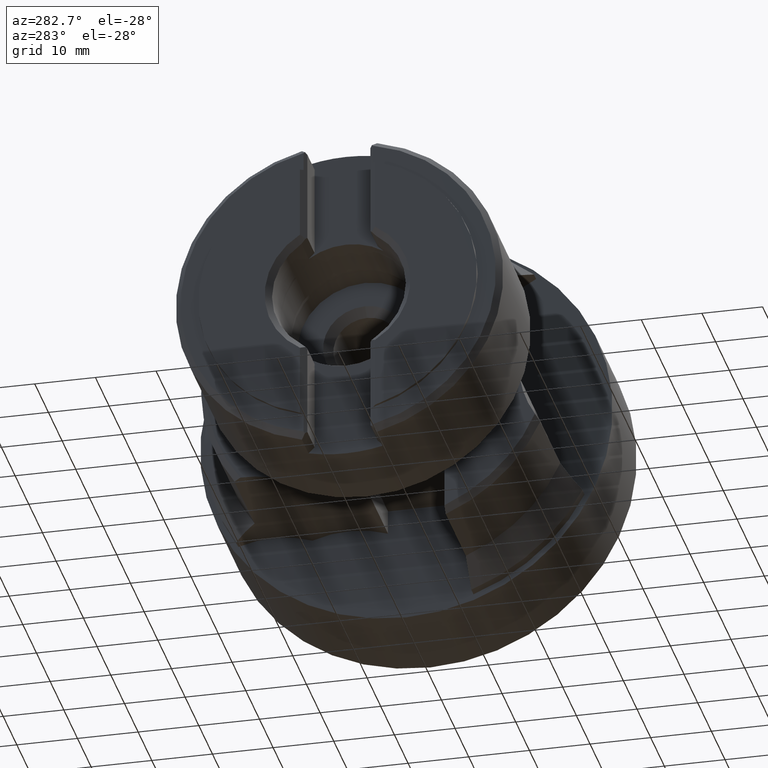
[diagram: clean part render]
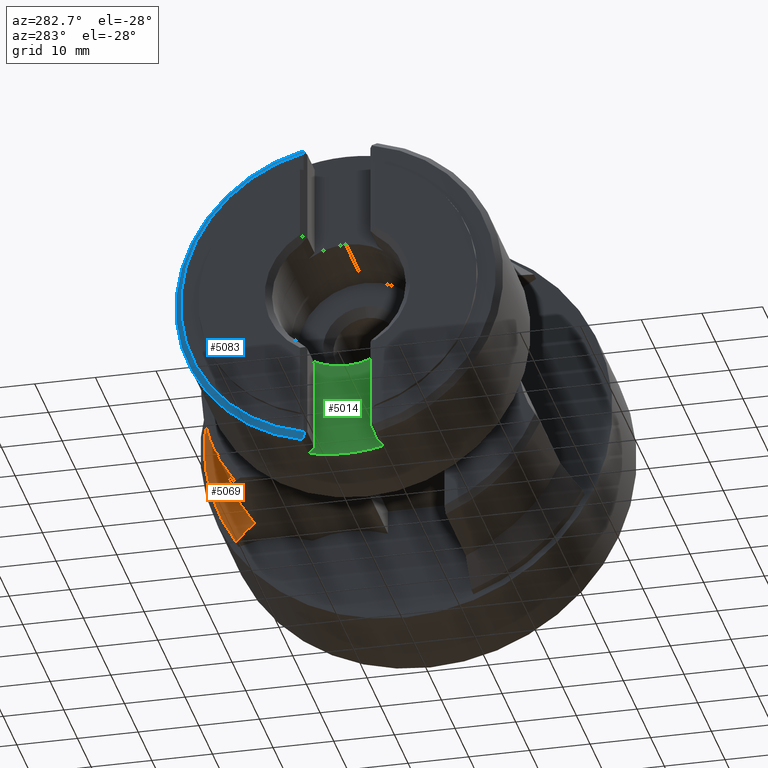
[diagram: same view with three faces highlighted in distinct colors, each labeled with its STEP entity id]
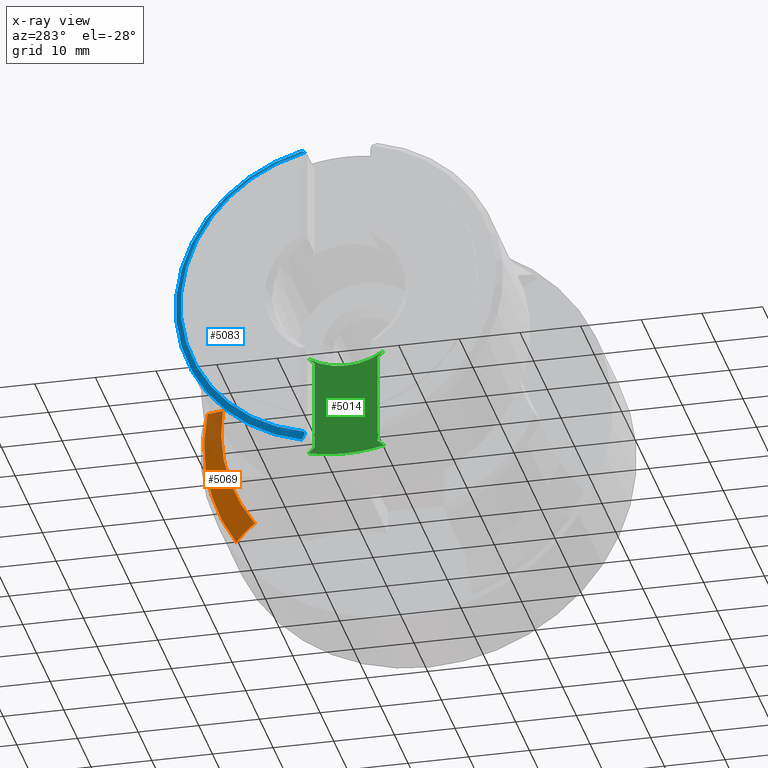
[diagram: x-ray of the same camera — body ghosted, the three highlighted faces saturated]
A machine part, auxiliary view with three faces highlighted in distinct colors.
The next image is the same camera in x-ray (body ghosted, the three faces saturated) — at least one of them is partly hidden behind the body in this view.
Their STEP definitions:

[orange] entity #5069 — the highlighted conical surface has half-angle 42.101 deg.
#166 = EDGE_LOOP ( 'NONE', ( #579, #580, #581, #582 ) ) ;
#579 = ORIENTED_EDGE ( 'NONE', *, *, #1084, .T. ) ;
#580 = ORIENTED_EDGE ( 'NONE', *, *, #1041, .T. ) ;
#581 = ORIENTED_EDGE ( 'NONE', *, *, #1082, .F. ) ;
#582 = ORIENTED_EDGE ( 'NONE', *, *, #1086, .T. ) ;
#961 = B_SPLINE_CURVE_WITH_KNOTS ( 'NONE', 3,
 ( #1782, #1776, #1777, #1784 ),
 .UNSPECIFIED., .F., .F.,
 ( 4, 4 ),
 ( 2.726379530013845500E-007, 0.005800431146334303200 ),
 .UNSPECIFIED. ) ;
#964 = B_SPLINE_CURVE_WITH_KNOTS ( 'NONE', 3,
 ( #1656, #1651, #1646, #1658 ),
 .UNSPECIFIED., .F., .F.,
 ( 4, 4 ),
 ( 2.794982499989496100E-007, 0.005773596531088529700 ),
 .UNSPECIFIED. ) ;
#1041 = EDGE_CURVE ( 'NONE', #4355, #4511, #964, .T. ) ;
#1082 = EDGE_CURVE ( 'NONE', #4357, #4511, #1261, .T. ) ;
#1084 = EDGE_CURVE ( 'NONE', #4367, #4355, #1265, .T. ) ;
#1086 = EDGE_CURVE ( 'NONE', #4357, #4367, #961, .T. ) ;
#1261 = CIRCLE ( 'NONE', #1451, 33.00000000000000000 ) ;
#1265 = CIRCLE ( 'NONE', #1453, 29.25000000000000000 ) ;
#1451 = AXIS2_PLACEMENT_3D ( 'NONE', #1768, #1769, #1770 ) ;
#1453 = AXIS2_PLACEMENT_3D ( 'NONE', #1778, #1779, #1780 ) ;
#1646 = CARTESIAN_POINT ( 'NONE',  ( -18.58883704439212500, 31.30418983705508000, 5.290947469328258100 ) ) ;
#1651 = CARTESIAN_POINT ( 'NONE',  ( -19.97293270629692300, 30.14625657856927900, 4.622414390837875900 ) ) ;
#1656 = CARTESIAN_POINT ( 'NONE',  ( -21.35000000000000100, 28.98202966262467900, 3.950247667519469100 ) ) ;
#1658 = CARTESIAN_POINT ( 'NONE',  ( -17.19999999999999900, 32.45787735365600200, 5.957029267598496600 ) ) ;
#1768 = CARTESIAN_POINT ( 'NONE',  ( -17.19999999999999900, 0.0000000000000000000, 0.0000000000000000000 ) ) ;
#1769 = DIRECTION ( 'NONE',  ( 1.000000000000000000, -0.0000000000000000000, -0.0000000000000000000 ) ) ;
#1770 = DIRECTION ( 'NONE',  ( 0.0000000000000000000, 0.0000000000000000000, -1.000000000000000000 ) ) ;
#1776 = CARTESIAN_POINT ( 'NONE',  ( -18.61827960286968800, 26.45021054141459500, -17.50866558839052400 ) ) ;
#1777 = CARTESIAN_POINT ( 'NONE',  ( -20.00844948755908700, 25.13781584252077300, -17.22021289439735600 ) ) ;
#1778 = CARTESIAN_POINT ( 'NONE',  ( -21.35000000000000100, 0.0000000000000000000, 0.0000000000000000000 ) ) ;
#1779 = DIRECTION ( 'NONE',  ( 1.000000000000000000, -0.0000000000000000000, -0.0000000000000000000 ) ) ;
#1780 = DIRECTION ( 'NONE',  ( 0.0000000000000000000, 0.0000000000000000000, -1.000000000000000000 ) ) ;
#1782 = CARTESIAN_POINT ( 'NONE',  ( -17.19999999999999900, 27.70529040977683600, -17.92810317099742100 ) ) ;
#1784 = CARTESIAN_POINT ( 'NONE',  ( -21.35000000000000100, 23.74200153094258100, -17.08449189483609100 ) ) ;
#2042 = CARTESIAN_POINT ( 'NONE',  ( -21.35000000000000100, 28.98202966262467900, 3.950247667519469100 ) ) ;
#2044 = CARTESIAN_POINT ( 'NONE',  ( -17.19999999999999900, 27.70529040977683600, -17.92810317099742100 ) ) ;
#2054 = CARTESIAN_POINT ( 'NONE',  ( -21.35000000000000100, 23.74200153094258100, -17.08449189483609100 ) ) ;
#2116 = CARTESIAN_POINT ( 'NONE',  ( -17.19999999999999900, 32.45787735365600200, 5.957029267598496600 ) ) ;
#2650 = AXIS2_PLACEMENT_3D ( 'NONE', #3970, #3966, #3968 ) ;
#3569 = FACE_OUTER_BOUND ( 'NONE', #166, .T. ) ;
#3577 = CONICAL_SURFACE ( 'NONE', #2650, 29.25000000000000000, 0.7348084546280639900 ) ;
#3966 = DIRECTION ( 'NONE',  ( 1.000000000000000000, -0.0000000000000000000, -0.0000000000000000000 ) ) ;
#3968 = DIRECTION ( 'NONE',  ( 0.0000000000000000000, 0.0000000000000000000, -1.000000000000000000 ) ) ;
#3970 = CARTESIAN_POINT ( 'NONE',  ( -21.35000000000000100, 0.0000000000000000000, 0.0000000000000000000 ) ) ;
#4355 = VERTEX_POINT ( 'NONE', #2042 ) ;
#4357 = VERTEX_POINT ( 'NONE', #2044 ) ;
#4367 = VERTEX_POINT ( 'NONE', #2054 ) ;
#4511 = VERTEX_POINT ( 'NONE', #2116 ) ;
#5069 = ADVANCED_FACE ( 'NONE', ( #3569 ), #3577, .T. ) ;

[blue] entity #5083 — the highlighted conical surface has half-angle 45 deg.
#18 = VERTEX_POINT ( 'NONE', #4961 ) ;
#114 = EDGE_LOOP ( 'NONE', ( #715, #716, #717, #718, #719, #720 ) ) ;
#715 = ORIENTED_EDGE ( 'NONE', *, *, #4763, .F. ) ;
#716 = ORIENTED_EDGE ( 'NONE', *, *, #4764, .F. ) ;
#717 = ORIENTED_EDGE ( 'NONE', *, *, #4919, .F. ) ;
#718 = ORIENTED_EDGE ( 'NONE', *, *, #4765, .F. ) ;
#719 = ORIENTED_EDGE ( 'NONE', *, *, #4766, .F. ) ;
#720 = ORIENTED_EDGE ( 'NONE', *, *, #4851, .F. ) ;
#1998 = CARTESIAN_POINT ( 'NONE',  ( -65.50000000000000000, 5.700000000000000200, 25.36749889129789200 ) ) ;
#1999 = CARTESIAN_POINT ( 'NONE',  ( -65.50000000000000000, 5.700000000000000200, -25.36749889129789200 ) ) ;
#2001 = CARTESIAN_POINT ( 'NONE',  ( -65.32182448682651500, 5.521824486826509400, 25.58918379970723200 ) ) ;
#2019 = CARTESIAN_POINT ( 'NONE',  ( -65.32182448682651500, 5.521824486826511200, -25.58918379970723200 ) ) ;
#2077 = CARTESIAN_POINT ( 'NONE',  ( -64.50000000000000000, 6.209019397347924900, -26.27637871022864500 ) ) ;
#2347 = CARTESIAN_POINT ( 'NONE',  ( -65.38132864421177700, 5.581328644211787100, 25.51546977256679600 ) ) ;
#2348 = CARTESIAN_POINT ( 'NONE',  ( -65.32182448682651500, 5.521824486826509400, 25.58918379970723200 ) ) ;
#2351 = CARTESIAN_POINT ( 'NONE',  ( -64.77490627285146700, 5.980533068123642200, 26.04789238100436300 ) ) ;
#2352 = CARTESIAN_POINT ( 'NONE',  ( -64.50000000000000000, 6.209019397347923100, 26.27637871022864500 ) ) ;
#2353 = CARTESIAN_POINT ( 'NONE',  ( -65.44072131131751700, 5.640721311317524700, 25.44157534792007900 ) ) ;
#2354 = CARTESIAN_POINT ( 'NONE',  ( -65.50000000000000000, 5.700000000000000200, 25.36749889129789200 ) ) ;
#2355 = CARTESIAN_POINT ( 'NONE',  ( -65.32182448682651500, 5.521824486826511200, -25.58918379970723200 ) ) ;
#2356 = CARTESIAN_POINT ( 'NONE',  ( -65.50000000000000000, 5.700000000000000200, -25.36749889129789200 ) ) ;
#2357 = CARTESIAN_POINT ( 'NONE',  ( -65.04888575098064500, 5.751487185814306200, -25.81884649869502700 ) ) ;
#2358 = CARTESIAN_POINT ( 'NONE',  ( -65.04888575098064500, 5.751487185814305300, 25.81884649869502700 ) ) ;
#2359 = CARTESIAN_POINT ( 'NONE',  ( -65.32182448682651500, 5.521824486826509400, 25.58918379970723200 ) ) ;
#2360 = CARTESIAN_POINT ( 'NONE',  ( -65.44072131131751700, 5.640721311317522100, -25.44157534792007500 ) ) ;
#2361 = CARTESIAN_POINT ( 'NONE',  ( -64.77490627285146700, 5.980533068123643900, -26.04789238100436300 ) ) ;
#2362 = CARTESIAN_POINT ( 'NONE',  ( -64.50000000000000000, 6.209019397347924900, -26.27637871022864500 ) ) ;
#2365 = CARTESIAN_POINT ( 'NONE',  ( -65.38132864421177700, 5.581328644211788000, -25.51546977256679600 ) ) ;
#2366 = CARTESIAN_POINT ( 'NONE',  ( -65.32182448682651500, 5.521824486826511200, -25.58918379970723200 ) ) ;
#2508 = AXIS2_PLACEMENT_3D ( 'NONE', #3057, #3058, #3059 ) ;
#2532 = AXIS2_PLACEMENT_3D ( 'NONE', #3230, #3231, #3232 ) ;
#2798 = CIRCLE ( 'NONE', #2508, 25.99999999999999600 ) ;
#2898 = CIRCLE ( 'NONE', #2532, 27.00000000000000000 ) ;
#3057 = CARTESIAN_POINT ( 'NONE',  ( -65.50000000000000000, 0.0000000000000000000, 0.0000000000000000000 ) ) ;
#3058 = DIRECTION ( 'NONE',  ( -1.000000000000000000, -0.0000000000000000000, -0.0000000000000000000 ) ) ;
#3059 = DIRECTION ( 'NONE',  ( 0.0000000000000000000, 0.0000000000000000000, 1.000000000000000000 ) ) ;
#3230 = CARTESIAN_POINT ( 'NONE',  ( -64.50000000000000000, 0.0000000000000000000, 0.0000000000000000000 ) ) ;
#3231 = DIRECTION ( 'NONE',  ( 1.000000000000000000, 0.0000000000000000000, 0.0000000000000000000 ) ) ;
#3232 = DIRECTION ( 'NONE',  ( 0.0000000000000000000, -8.881784197001252300E-016, 1.000000000000000000 ) ) ;
#3591 = FACE_OUTER_BOUND ( 'NONE', #114, .T. ) ;
#3602 = CONICAL_SURFACE ( 'NONE', #4182, 25.99999999999999600, 0.7853981633974500600 ) ;
#4014 = DIRECTION ( 'NONE',  ( 0.0000000000000000000, 0.0000000000000000000, -1.000000000000000000 ) ) ;
#4015 = CARTESIAN_POINT ( 'NONE',  ( -65.50000000000000000, 0.0000000000000000000, 0.0000000000000000000 ) ) ;
#4016 = DIRECTION ( 'NONE',  ( 1.000000000000000000, 0.0000000000000000000, 0.0000000000000000000 ) ) ;
#4182 = AXIS2_PLACEMENT_3D ( 'NONE', #4015, #4016, #4014 ) ;
#4273 = VERTEX_POINT ( 'NONE', #1998 ) ;
#4274 = VERTEX_POINT ( 'NONE', #1999 ) ;
#4276 = VERTEX_POINT ( 'NONE', #2001 ) ;
#4294 = VERTEX_POINT ( 'NONE', #2019 ) ;
#4405 = B_SPLINE_CURVE_WITH_KNOTS ( 'NONE', 3,
 ( #2352, #2351, #2358, #2359 ),
 .UNSPECIFIED., .F., .F.,
 ( 4, 4 ),
 ( 3.086461009555271100E-007, 0.001273049166015698200 ),
 .UNSPECIFIED. ) ;
#4411 = B_SPLINE_CURVE_WITH_KNOTS ( 'NONE', 3,
 ( #2356, #2360, #2365, #2366 ),
 .UNSPECIFIED., .F., .F.,
 ( 4, 4 ),
 ( 3.774406307790514400E-007, 0.0003359915951443519900 ),
 .UNSPECIFIED. ) ;
#4415 = B_SPLINE_CURVE_WITH_KNOTS ( 'NONE', 3,
 ( #2355, #2357, #2361, #2362 ),
 .UNSPECIFIED., .F., .F.,
 ( 4, 4 ),
 ( 0.0002774923065549197500, 0.001550232826469665600 ),
 .UNSPECIFIED. ) ;
#4426 = B_SPLINE_CURVE_WITH_KNOTS ( 'NONE', 3,
 ( #2348, #2347, #2353, #2354 ),
 .UNSPECIFIED., .F., .F.,
 ( 4, 4 ),
 ( 0.0002822034073843696400, 0.0006178175618979449500 ),
 .UNSPECIFIED. ) ;
#4429 = VERTEX_POINT ( 'NONE', #2077 ) ;
#4763 = EDGE_CURVE ( 'NONE', #4276, #4273, #4426, .T. ) ;
#4764 = EDGE_CURVE ( 'NONE', #18, #4276, #4405, .T. ) ;
#4765 = EDGE_CURVE ( 'NONE', #4294, #4429, #4415, .T. ) ;
#4766 = EDGE_CURVE ( 'NONE', #4274, #4294, #4411, .T. ) ;
#4851 = EDGE_CURVE ( 'NONE', #4273, #4274, #2798, .T. ) ;
#4919 = EDGE_CURVE ( 'NONE', #4429, #18, #2898, .T. ) ;
#4961 = CARTESIAN_POINT ( 'NONE',  ( -64.50000000000000000, 6.209019397347923100, 26.27637871022864500 ) ) ;
#5083 = ADVANCED_FACE ( 'NONE', ( #3591 ), #3602, .T. ) ;

[green] entity #5014 — the highlighted planar face has unit normal (1, 0, 0).
#8 = VERTEX_POINT ( 'NONE', #4965 ) ;
#12 = VERTEX_POINT ( 'NONE', #4384 ) ;
#23 = VERTEX_POINT ( 'NONE', #944 ) ;
#56 = VERTEX_POINT ( 'NONE', #932 ) ;
#128 = EDGE_LOOP ( 'NONE', ( #763, #764, #765, #766, #767, #768, #769, #770, #771, #772 ) ) ;
#763 = ORIENTED_EDGE ( 'NONE', *, *, #4937, .T. ) ;
#764 = ORIENTED_EDGE ( 'NONE', *, *, #4746, .T. ) ;
#765 = ORIENTED_EDGE ( 'NONE', *, *, #4776, .T. ) ;
#766 = ORIENTED_EDGE ( 'NONE', *, *, #4774, .T. ) ;
#767 = ORIENTED_EDGE ( 'NONE', *, *, #4786, .T. ) ;
#768 = ORIENTED_EDGE ( 'NONE', *, *, #4917, .T. ) ;
#769 = ORIENTED_EDGE ( 'NONE', *, *, #4755, .T. ) ;
#770 = ORIENTED_EDGE ( 'NONE', *, *, #4784, .T. ) ;
#771 = ORIENTED_EDGE ( 'NONE', *, *, #4782, .T. ) ;
#772 = ORIENTED_EDGE ( 'NONE', *, *, #4779, .T. ) ;
#932 = CARTESIAN_POINT ( 'NONE',  ( -59.70000000000000300, 6.209019397347923100, -26.27637871022864900 ) ) ;
#944 = CARTESIAN_POINT ( 'NONE',  ( -59.70000000000000300, -6.157128421405584400, -9.145512265713691100 ) ) ;
#1369 = CIRCLE ( 'NONE', #2478, 11.02500000000000000 ) ;
#1981 = CARTESIAN_POINT ( 'NONE',  ( -59.70000000000000300, -5.199999999999993100, -10.10264068711928500 ) ) ;
#1982 = CARTESIAN_POINT ( 'NONE',  ( -59.70000000000000300, -5.199999999999994000, -25.26735931288071400 ) ) ;
#1983 = CARTESIAN_POINT ( 'NONE',  ( -59.70000000000000300, 5.199999999999994000, -25.26735931288071400 ) ) ;
#2003 = CARTESIAN_POINT ( 'NONE',  ( -59.70000000000000300, 6.157128421405584400, -9.145512265713691100 ) ) ;
#2010 = CARTESIAN_POINT ( 'NONE',  ( -59.70000000000000300, 5.199999999999993100, -10.10264068711928500 ) ) ;
#2016 = CARTESIAN_POINT ( 'NONE',  ( -59.70000000000000300, -6.209019397347923100, -26.27637871022864900 ) ) ;
#2245 = VERTEX_POINT ( 'NONE', #1981 ) ;
#2246 = VERTEX_POINT ( 'NONE', #1982 ) ;
#2247 = VERTEX_POINT ( 'NONE', #1983 ) ;
#2298 = CARTESIAN_POINT ( 'NONE',  ( -59.70000000000000300, 0.0000000000000000000, 0.0000000000000000000 ) ) ;
#2299 = DIRECTION ( 'NONE',  ( 1.000000000000000000, 0.0000000000000000000, 0.0000000000000000000 ) ) ;
#2300 = DIRECTION ( 'NONE',  ( 0.0000000000000000000, 0.0000000000000000000, -1.000000000000000000 ) ) ;
#2325 = CARTESIAN_POINT ( 'NONE',  ( -59.70000000000000300, 0.0000000000000000000, 0.0000000000000000000 ) ) ;
#2326 = DIRECTION ( 'NONE',  ( -1.000000000000000000, -0.0000000000000000000, -0.0000000000000000000 ) ) ;
#2327 = DIRECTION ( 'NONE',  ( 0.0000000000000000000, 0.0000000000000000000, -1.000000000000000000 ) ) ;
#2389 = CARTESIAN_POINT ( 'NONE',  ( -59.70000000000000300, 5.199999999999994000, -25.26735931288071400 ) ) ;
#2390 = DIRECTION ( 'NONE',  ( -0.0000000000000000000, 5.719603240873537200E-017, -1.000000000000000000 ) ) ;
#2393 = CARTESIAN_POINT ( 'NONE',  ( -59.70000000000000300, 5.199999999999993100, -10.10264068711928500 ) ) ;
#2394 = DIRECTION ( 'NONE',  ( -0.0000000000000000000, -0.7071067811865479100, -0.7071067811865472400 ) ) ;
#2399 = CARTESIAN_POINT ( 'NONE',  ( -59.70000000000000300, -5.199999999999993100, -10.10264068711928500 ) ) ;
#2400 = DIRECTION ( 'NONE',  ( 0.0000000000000000000, -0.7071067811865479100, 0.7071067811865472400 ) ) ;
#2405 = CARTESIAN_POINT ( 'NONE',  ( -59.70000000000000300, -5.199999999999994000, -25.26735931288071400 ) ) ;
#2406 = DIRECTION ( 'NONE',  ( 0.0000000000000000000, 5.719603240873537200E-017, 1.000000000000000000 ) ) ;
#2409 = CARTESIAN_POINT ( 'NONE',  ( -59.70000000000000300, -8.321320343559635900, -28.38867965644036000 ) ) ;
#2410 = DIRECTION ( 'NONE',  ( 0.0000000000000000000, 0.7071067811865470200, 0.7071067811865480200 ) ) ;
#2413 = CARTESIAN_POINT ( 'NONE',  ( -59.70000000000000300, 8.321320343559635900, -28.38867965644036000 ) ) ;
#2414 = DIRECTION ( 'NONE',  ( -0.0000000000000000000, 0.7071067811865470200, -0.7071067811865480200 ) ) ;
#2478 = AXIS2_PLACEMENT_3D ( 'NONE', #2298, #2299, #2300 ) ;
#2485 = AXIS2_PLACEMENT_3D ( 'NONE', #2325, #2326, #2327 ) ;
#2531 = AXIS2_PLACEMENT_3D ( 'NONE', #3225, #3226, #3227 ) ;
#2539 = AXIS2_PLACEMENT_3D ( 'NONE', #3273, #3274, #3275 ) ;
#2596 = AXIS2_PLACEMENT_3D ( 'NONE', #3776, #3780, #3781 ) ;
#2671 = CIRCLE ( 'NONE', #2485, 27.00000000000000000 ) ;
#2684 = LINE ( 'NONE', #2389, #2687 ) ;
#2687 = VECTOR ( 'NONE', #2390, 1000.000000000000000 ) ;
#2688 = LINE ( 'NONE', #2393, #2691 ) ;
#2691 = VECTOR ( 'NONE', #2394, 1000.000000000000000 ) ;
#2694 = LINE ( 'NONE', #2399, #2697 ) ;
#2697 = VECTOR ( 'NONE', #2400, 1000.000000000000000 ) ;
#2700 = LINE ( 'NONE', #2405, #2703 ) ;
#2703 = VECTOR ( 'NONE', #2406, 1000.000000000000000 ) ;
#2704 = LINE ( 'NONE', #2409, #2707 ) ;
#2707 = VECTOR ( 'NONE', #2410, 1000.000000000000000 ) ;
#2708 = LINE ( 'NONE', #2413, #2711 ) ;
#2711 = VECTOR ( 'NONE', #2414, 1000.000000000000000 ) ;
#2895 = CIRCLE ( 'NONE', #2531, 27.00000000000000000 ) ;
#2922 = CIRCLE ( 'NONE', #2539, 11.02500000000000000 ) ;
#3225 = CARTESIAN_POINT ( 'NONE',  ( -59.70000000000000300, 0.0000000000000000000, 0.0000000000000000000 ) ) ;
#3226 = DIRECTION ( 'NONE',  ( -1.000000000000000000, -0.0000000000000000000, -0.0000000000000000000 ) ) ;
#3227 = DIRECTION ( 'NONE',  ( 0.0000000000000000000, 3.552713678800500900E-015, -1.000000000000000000 ) ) ;
#3273 = CARTESIAN_POINT ( 'NONE',  ( -59.70000000000000300, 0.0000000000000000000, 0.0000000000000000000 ) ) ;
#3274 = DIRECTION ( 'NONE',  ( 1.000000000000000000, 0.0000000000000000000, 0.0000000000000000000 ) ) ;
#3275 = DIRECTION ( 'NONE',  ( 0.0000000000000000000, 0.0000000000000000000, -1.000000000000000000 ) ) ;
#3448 = FACE_OUTER_BOUND ( 'NONE', #128, .T. ) ;
#3776 = CARTESIAN_POINT ( 'NONE',  ( -59.70000000000000300, 5.199999999999993100, -6.981320343559640500 ) ) ;
#3778 = PLANE ( 'NONE',  #2596 ) ;
#3780 = DIRECTION ( 'NONE',  ( 1.000000000000000000, 0.0000000000000000000, 0.0000000000000000000 ) ) ;
#3781 = DIRECTION ( 'NONE',  ( 0.0000000000000000000, 0.0000000000000000000, -1.000000000000000000 ) ) ;
#4278 = VERTEX_POINT ( 'NONE', #2003 ) ;
#4285 = VERTEX_POINT ( 'NONE', #2010 ) ;
#4291 = VERTEX_POINT ( 'NONE', #2016 ) ;
#4384 = CARTESIAN_POINT ( 'NONE',  ( -59.70000000000000300, 3.306546357697853700E-015, -27.00000000000000000 ) ) ;
#4746 = EDGE_CURVE ( 'NONE', #8, #4278, #1369, .T. ) ;
#4755 = EDGE_CURVE ( 'NONE', #12, #4291, #2671, .T. ) ;
#4774 = EDGE_CURVE ( 'NONE', #4285, #2247, #2684, .T. ) ;
#4776 = EDGE_CURVE ( 'NONE', #4278, #4285, #2688, .T. ) ;
#4779 = EDGE_CURVE ( 'NONE', #2245, #23, #2694, .T. ) ;
#4782 = EDGE_CURVE ( 'NONE', #2246, #2245, #2700, .T. ) ;
#4784 = EDGE_CURVE ( 'NONE', #4291, #2246, #2704, .T. ) ;
#4786 = EDGE_CURVE ( 'NONE', #2247, #56, #2708, .T. ) ;
#4917 = EDGE_CURVE ( 'NONE', #56, #12, #2895, .T. ) ;
#4937 = EDGE_CURVE ( 'NONE', #23, #8, #2922, .T. ) ;
#4965 = CARTESIAN_POINT ( 'NONE',  ( -59.70000000000000300, 1.350173096059956900E-015, -11.02500000000000000 ) ) ;
#5014 = ADVANCED_FACE ( 'NONE', ( #3448 ), #3778, .F. ) ;